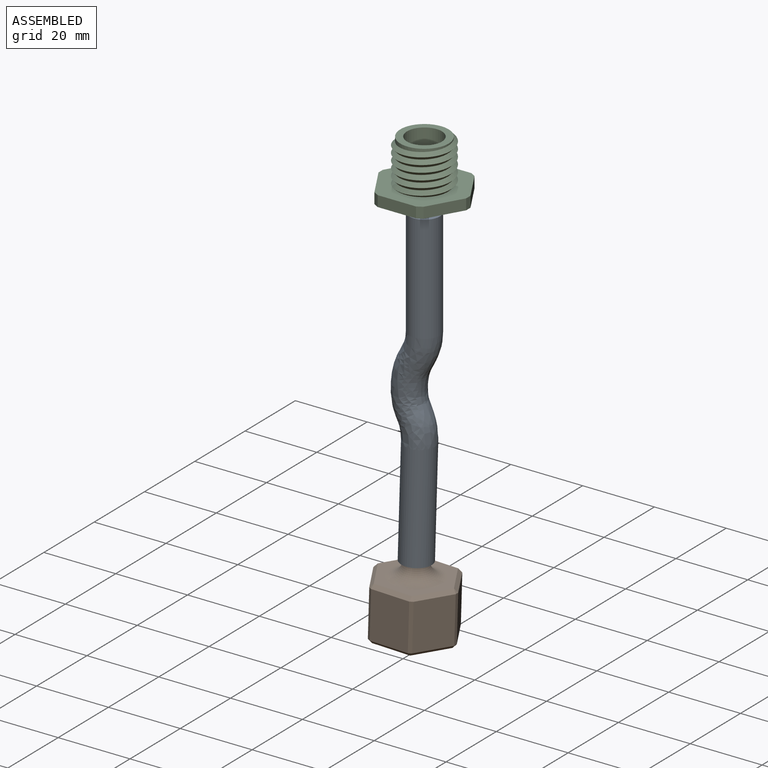
[diagram: assembled view]
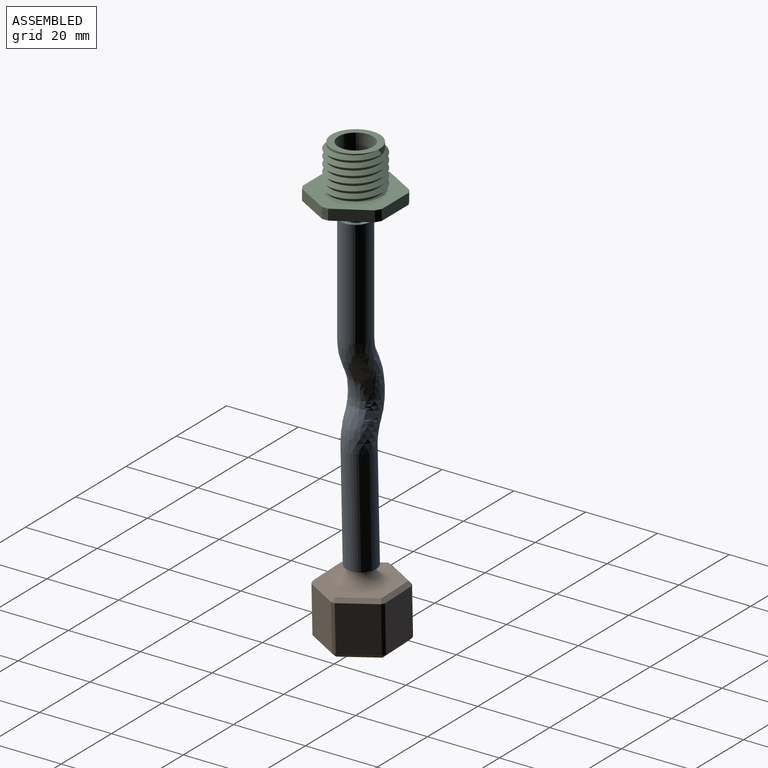
[diagram: assembled view, second angle]
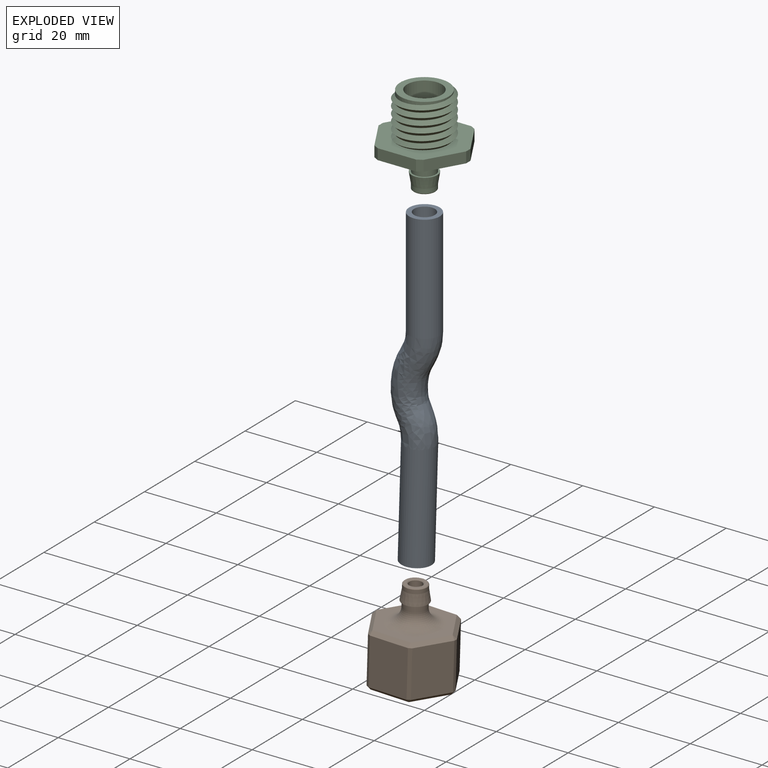
[diagram: exploded view]
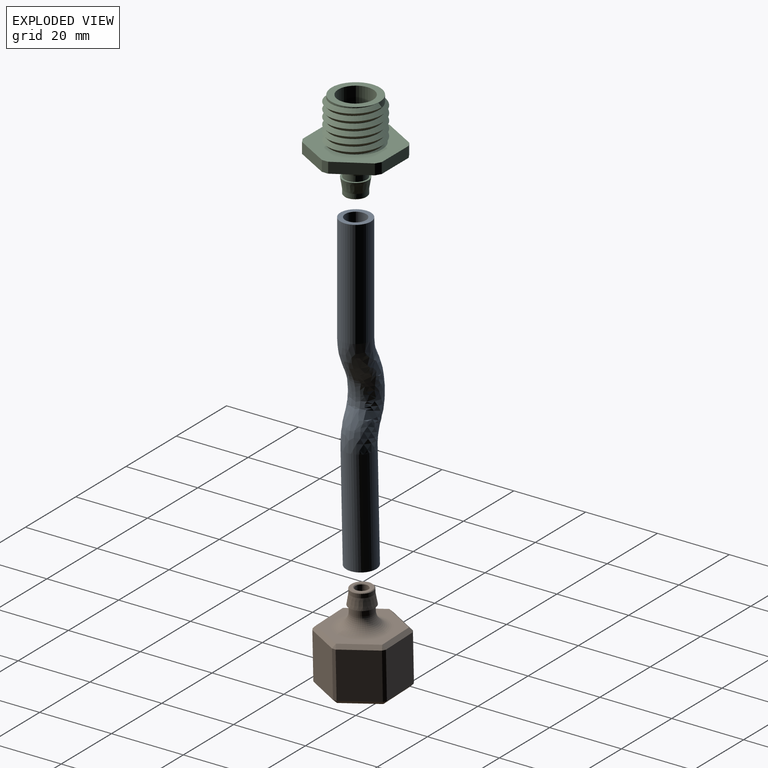
[diagram: exploded view, second angle]
ASSEMBLY  parts=3 mates=2
PART A: 8 faces, bbox 16.2x17x88.8 mm
  f0: cylinder r=2.9mm len=30.38mm, axis (-0.08,0,1), area 546.6mm2, adj f1,f3
  f1: bspline ~28.81x11.6mm, area 537.4mm2, adj f0,f2
  f2: cylinder r=2.9mm len=30.46mm, axis (-0.11,0,0.99), area 546.6mm2, adj f1,f4
  f3: plane 8.5x8.47mm, normal (0.08,0,-1), area 30.3mm2, adj f0,f5
  f4: plane 8.5x8.45mm, normal (-0.11,0,0.99), area 30.3mm2, adj f2,f7
  f5: cylinder r=4.25mm len=30.6mm, axis (-0.08,0,1), area 801.1mm2, adj f3,f6
  f6: bspline ~29.07x17mm, area 787.6mm2, adj f5,f7
  f7: cylinder r=4.25mm len=30.77mm, axis (-0.11,0,0.99), area 801.1mm2, adj f4,f6
PART B: 60 faces, bbox 23.5x20.9x25.7 mm
  f0: cylinder r=7.69mm len=15.38mm, axis (0,0,-1), area 46.8mm2, adj f1,f21,f22,f23,f57
  f1: cylinder r=7.69mm len=15.38mm, axis (0,0,-1), area 12.4mm2, adj f0,f2,f23,f24,f58
  f2: cylinder r=7.69mm len=15.38mm, axis (0,0,-1), area 12.2mm2, adj f1,f3,f23,f24
  f3: cylinder r=7.69mm len=15.38mm, axis (0,0,-1), area 12.2mm2, adj f2,f4,f23,f24
  f4: cylinder r=7.69mm len=15.38mm, axis (0,0,-1), area 12.3mm2, adj f3,f5,f23,f24
  f5: cylinder r=7.69mm len=15.38mm, axis (0,0,-1), area 12.2mm2, adj f4,f6,f23,f24
  f6: cylinder r=7.69mm len=15.38mm, axis (0,0,-1), area 7.1mm2, adj f5,f7,f23,f24
  f7: plane 15.25x15.25mm, normal (0,0,1), area 158.6mm2, adj f6,f11,f23,f24
  f8: cylinder r=3.1mm len=6.2mm, axis (0,0,1), area 32.4mm2, adj f12,f59
  f9: plane 5.8x5.8mm, normal (0,0,-1), area 13.9mm2, adj f55,f56
  f10: cylinder r=3.1mm len=6.2mm, axis (0,0,1), area 22.2mm2, adj f13,f56
  f11: cylinder r=1.8mm len=12.3mm, axis (0,0,1), area 139.1mm2, adj f7,f55
  f12: plane 7.2x7.2mm, normal (0,0,1), area 10.5mm2, adj f8,f13
  f13: cone r=3.6mm half-angle=9.5deg, axis (0,0,1), area 64mm2, adj f10,f12
  f14: plane 13.1x9.19mm, normal (0.87,-0.5,0), area 139mm2, adj f30,f39,f40,f41
  f15: plane 13.1x9.19mm, normal (0.87,0.5,0), area 139mm2, adj f25,f29,f30,f31
  f16: plane 13.1x10.61mm, normal (0,1,0), area 139mm2, adj f25,f28,f32,f33
  f17: plane 13.1x10.61mm, normal (0,-1,0), area 139mm2, adj f40,f49,f50,f54
  f18: plane 21.22x18.38mm, normal (0,0,-1), area 134.2mm2, adj f31,f32,f41,f42,f50,f51,f59
  f19: plane 13.1x9.19mm, normal (-0.87,0.5,0), area 139mm2, adj f33,f38,f42,f43
  f20: plane 13.1x9.19mm, normal (-0.87,-0.5,0), area 139mm2, adj f43,f48,f51,f54
  f21: plane 21.22x18.38mm, normal (0,0,1), area 106.8mm2, adj f0,f28,f29,f38,f39,f48,f49
  f22: plane 0.33x0.17mm, normal (-1,0,0), area 0mm2, adj f0,f57,f58
  f23: bspline ~17.76x15.38mm, area 341.9mm2, adj f0,f1,f2,f3,f4,f5,f6,f7
  f24: bspline ~17.76x15.38mm, area 317.7mm2, adj f1,f2,f3,f4,f5,f6,f7,f23
  f25: plane 13.1x0.87mm, normal (0.5,0.87,0), area 13.1mm2, adj f15,f16,f26,f27
  f26: plane 1x1mm, normal (0.38,0.65,0.65), area 0.7mm2, adj f25,f28,f29
  f27: plane 1x1mm, normal (0.38,0.65,-0.65), area 0.7mm2, adj f25,f31,f32
  f28: plane 10.61x1mm, normal (0,0.71,0.71), area 15mm2, adj f16,f21,f26,f34
  f29: plane 9.69x6.17mm, normal (0.61,0.35,0.71), area 15mm2, adj f15,f21,f26,f35
  f30: plane 13.1x1mm, normal (1,0,0), area 13.1mm2, adj f14,f15,f35,f36
  f31: plane 9.69x6.17mm, normal (0.61,0.35,-0.71), area 15mm2, adj f15,f18,f27,f36
  f32: plane 10.61x1mm, normal (0,0.71,-0.71), area 15mm2, adj f16,f18,f27,f37
  f33: plane 13.1x0.87mm, normal (-0.5,0.87,0), area 13.1mm2, adj f16,f19,f34,f37
  f34: plane 1x1mm, normal (-0.38,0.65,0.65), area 0.7mm2, adj f28,f33,f38
  f35: plane 1x1mm, normal (0.76,0,0.65), area 0.7mm2, adj f29,f30,f39
  f36: plane 1x1mm, normal (0.76,0,-0.65), area 0.7mm2, adj f30,f31,f41
  f37: plane 1x1mm, normal (-0.38,0.65,-0.65), area 0.7mm2, adj f32,f33,f42
  f38: plane 9.69x6.17mm, normal (-0.61,0.35,0.71), area 15mm2, adj f19,f21,f34,f44
  f39: plane 9.69x6.17mm, normal (0.61,-0.35,0.71), area 15mm2, adj f14,f21,f35,f45
  f40: plane 13.1x0.87mm, normal (0.5,-0.87,0), area 13.1mm2, adj f14,f17,f45,f46
  f41: plane 9.69x6.17mm, normal (0.61,-0.35,-0.71), area 15mm2, adj f14,f18,f36,f46
  f42: plane 9.69x6.17mm, normal (-0.61,0.35,-0.71), area 15mm2, adj f18,f19,f37,f47
  f43: plane 13.1x1mm, normal (-1,0,0), area 13.1mm2, adj f19,f20,f44,f47
  f44: plane 1x1mm, normal (-0.76,0,0.65), area 0.7mm2, adj f38,f43,f48
  f45: plane 1x1mm, normal (0.38,-0.65,0.65), area 0.7mm2, adj f39,f40,f49
  f46: plane 1x1mm, normal (0.38,-0.65,-0.65), area 0.7mm2, adj f40,f41,f50
  f47: plane 1x1mm, normal (-0.76,0,-0.65), area 0.7mm2, adj f42,f43,f51
  f48: plane 9.69x6.17mm, normal (-0.61,-0.35,0.71), area 15mm2, adj f20,f21,f44,f52
  f49: plane 10.61x1mm, normal (0,-0.71,0.71), area 15mm2, adj f17,f21,f45,f52
  f50: plane 10.61x1mm, normal (0,-0.71,-0.71), area 15mm2, adj f17,f18,f46,f53
  f51: plane 9.69x6.17mm, normal (-0.61,-0.35,-0.71), area 15mm2, adj f18,f20,f47,f53
  f52: plane 1x1mm, normal (-0.38,-0.65,0.65), area 0.7mm2, adj f48,f49,f54
  f53: plane 1x1mm, normal (-0.38,-0.65,-0.65), area 0.7mm2, adj f50,f51,f54
  f54: plane 13.1x0.87mm, normal (-0.5,-0.87,0), area 13.1mm2, adj f17,f20,f52,f53
  f55: cone r=2mm half-angle=45deg, axis (0,0,-1), area 3.4mm2, adj f9,f11
  f56: cone r=3.1mm half-angle=45deg, axis (0,0,1), area 5.3mm2, adj f9,f10
  f57: bspline ~1.19x1.19mm, area 0.5mm2, adj f0,f22,f23,f24,f58
  f58: bspline ~1.27x1.27mm, area 0.5mm2, adj f1,f22,f24,f57
  f59: torus R=7.1mm, axis (0,0,1), area 179.8mm2, adj f8,f18
PART C: 38 faces, bbox 25.2x22.8x25.8 mm
  f0: plane 9.7x9.7mm, normal (0,0,1), area 63.7mm2, adj f4,f16
  f1: cylinder r=3.1mm len=6.2mm, axis (0,0,1), area 30.4mm2, adj f5,f37
  f2: plane 5.8x5.8mm, normal (0,0,-1), area 13.9mm2, adj f29,f30
  f3: cylinder r=3.1mm len=6.2mm, axis (0,0,1), area 24.1mm2, adj f6,f30
  f4: cylinder r=1.8mm len=12.8mm, axis (0,0,1), area 144.8mm2, adj f0,f29
  f5: plane 7.2x7.2mm, normal (0,0,1), area 10.5mm2, adj f1,f6
  f6: cone r=3.6mm half-angle=9.5deg, axis (0,0,1), area 64mm2, adj f3,f5
  f7: plane 25.23x22.83mm, normal (0,0,1), area 254.9mm2, adj f8,f9,f10,f11,f13,f14,f23,f25
  f8: plane 9.27x5.35mm, normal (0.87,-0.5,0), area 32.1mm2, adj f7,f12,f34,f35
  f9: plane 9.27x5.35mm, normal (0.87,0.5,0), area 32.1mm2, adj f7,f12,f33,f34
  f10: plane 10.7x3mm, normal (0,1,0), area 32.1mm2, adj f7,f12,f32,f33
  f11: plane 10.7x3mm, normal (0,-1,0), area 32.1mm2, adj f7,f12,f35,f36
  f12: plane 24.4x22mm, normal (0,0,-1), area 258.2mm2, adj f8,f9,f10,f11,f13,f14,f31,f32
  f13: plane 9.27x5.35mm, normal (-0.87,0.5,0), area 32.1mm2, adj f7,f12,f31,f32
  f14: plane 9.27x5.35mm, normal (-0.87,-0.5,0), area 32.1mm2, adj f7,f12,f31,f36
  f15: plane 13.44x13.44mm, normal (0,0,1), area 68mm2, adj f16,f17
  f16: cylinder r=4.85mm len=12mm, axis (0,0,-1), area 365.7mm2, adj f0,f15
  f17: cylinder r=6.72mm len=13.44mm, axis (0,0,-1), area 41mm2, adj f15,f18,f24,f25,f27
  f18: cylinder r=6.72mm len=13.44mm, axis (0,0,-1), area 3.3mm2, adj f17,f19,f25,f26,f28
  f19: cylinder r=6.72mm len=13.44mm, axis (0,0,-1), area 3.1mm2, adj f18,f20,f25,f26
  f20: cylinder r=6.72mm len=13.44mm, axis (0,0,-1), area 3.1mm2, adj f19,f21,f25,f26
  f21: cylinder r=6.72mm len=13.44mm, axis (0,0,-1), area 3.1mm2, adj f20,f22,f25,f26
  f22: cylinder r=6.72mm len=13.44mm, axis (0,0,-1), area 3.1mm2, adj f21,f23,f25,f26
  f23: cylinder r=6.72mm len=6.72mm, axis (0,0,-1), area 0.7mm2, adj f7,f22,f25,f26
  f24: plane 0.45x0.22mm, normal (-1,0,0), area 0mm2, adj f17,f27,f28
  f25: bspline ~17.67x15.3mm, area 353.5mm2, adj f7,f17,f18,f19,f20,f21,f22,f23
  f26: bspline ~17.67x15.3mm, area 325.6mm2, adj f7,f18,f19,f20,f21,f22,f23,f25
  f27: bspline ~1.28x1.27mm, area 0.6mm2, adj f17,f24,f25,f26,f28
  f28: bspline ~1.26x1.26mm, area 0.6mm2, adj f18,f24,f26,f27
  f29: cone r=2mm half-angle=45deg, axis (0,0,-1), area 3.4mm2, adj f2,f4
  f30: cone r=3.1mm half-angle=45deg, axis (0,0,1), area 5.3mm2, adj f2,f3
  f31: plane 3x1.73mm, normal (-1,0,0), area 5.2mm2, adj f7,f12,f13,f14
  f32: plane 3x1.5mm, normal (-0.5,0.87,0), area 5.2mm2, adj f7,f10,f12,f13
  f33: plane 3x1.5mm, normal (0.5,0.87,0), area 5.2mm2, adj f7,f9,f10,f12
  f34: plane 3x1.73mm, normal (1,0,0), area 5.2mm2, adj f7,f8,f9,f12
  f35: plane 3x1.5mm, normal (0.5,-0.87,0), area 5.2mm2, adj f7,f8,f11,f12
  f36: plane 3x1.5mm, normal (-0.5,-0.87,0), area 5.2mm2, adj f7,f11,f12,f14
  f37: torus R=7.1mm, axis (0,0,1), area 179.8mm2, adj f1,f12
PLACE A rot(axis=(0,1,0),6.5deg) t=(-4.11,0,-62.23)mm
PLACE B rot(axis=(1,0,-0.02),180deg) t=(-2.39,0,-111.25)mm
PLACE C t=(0,0,-15)mm
MATE fastened B.f8 <-> A.f0  axis (-0.03,0,-1) through (-2.27,0,-107.25)mm
MATE fastened C.f1 <-> A.f2  axis (0,0,1) through (0,0,-19)mm
